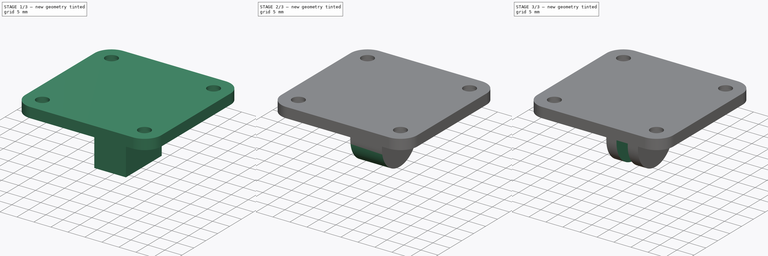
[diagram: build sequence overview — one tinted view per stage of 3, left to right]
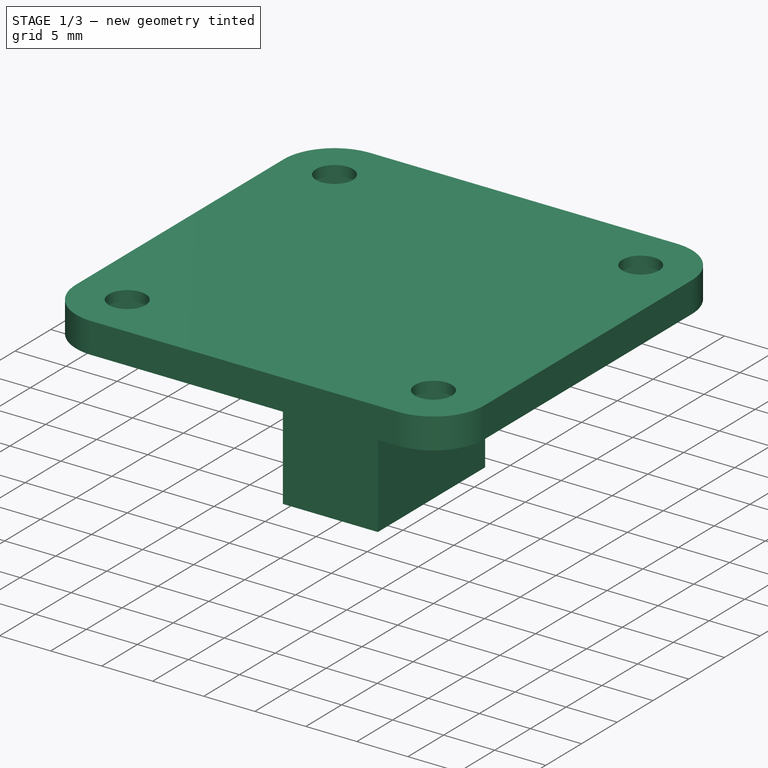
[diagram: stage 1 of 3 — iso view after this stage's code; geometry added in this stage tinted green]
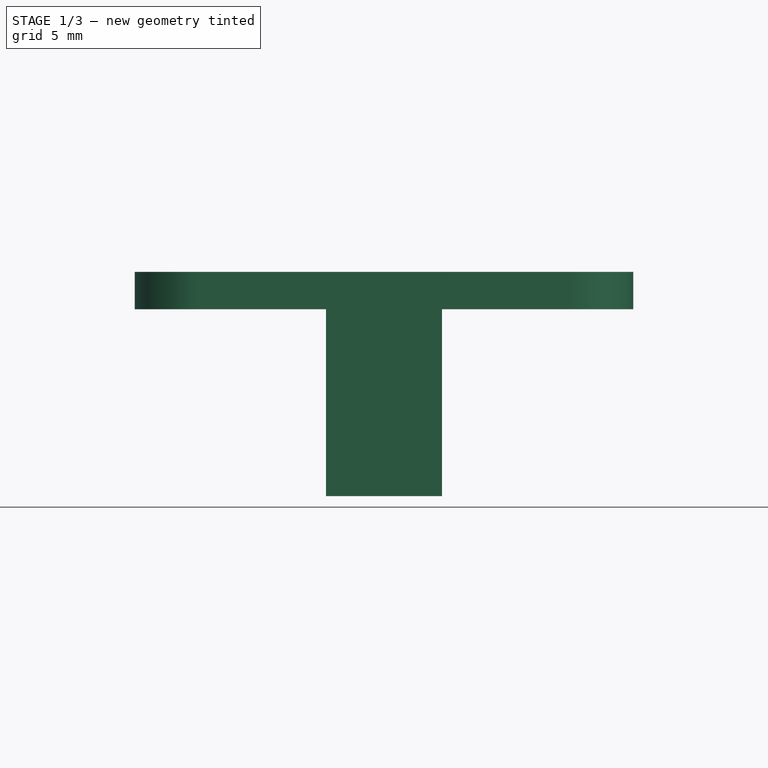
[diagram: stage 1 of 3 — front view after this stage's code; geometry added in this stage tinted green]
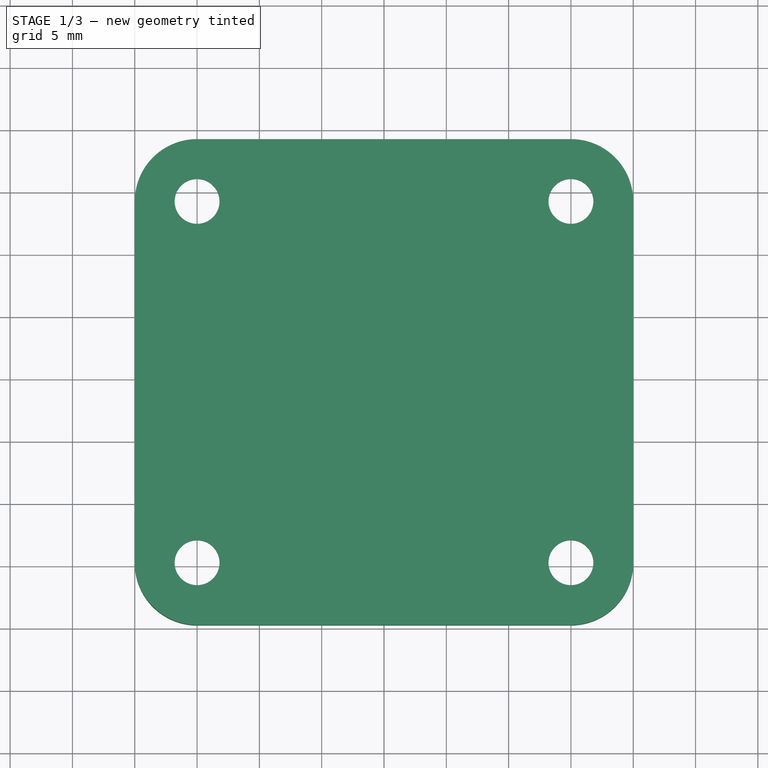
[diagram: stage 1 of 3 — top view after this stage's code; geometry added in this stage tinted green]
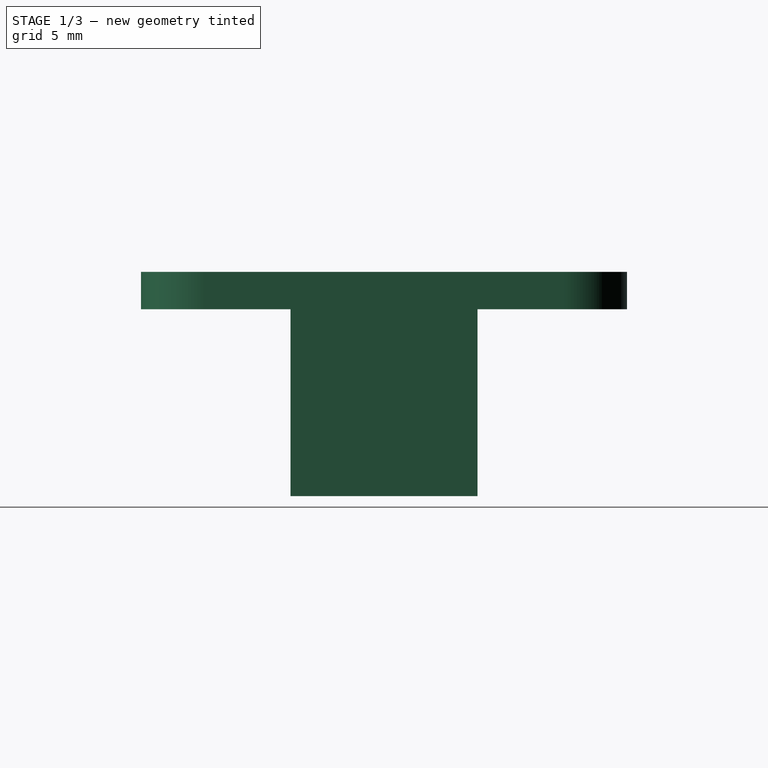
[diagram: stage 1 of 3 — right view after this stage's code; geometry added in this stage tinted green]
FCSTD DOCUMENT  (FreeCAD 0.14R3703 (Git))
Label: GoproMount
License: CC-BY 3.0
LicenseURL: http://creativecommons.org/licenses/by/3.0/
objects: Sketcher::SketchObject×5, PartDesign::Pocket×3, PartDesign::Fillet×3, PartDesign::Pad×2
note: 18 computed .brp shape members not serialized (recipe doc carries the construction recipe); baked Part::Feature solids carry a one-line shape summary decoded from their .brp

FEATURE [Sketcher::SketchObject] Sketch
  Placement = pos=(0,0,0) rot=(1,0,0;3.14159rad)
  sketch-geometry (16):
    g0: LineSegment [constr] StartX=0 StartY=-29 StartZ=0 EndX=30 EndY=-29 EndZ=0
    g1: LineSegment [constr] StartX=0 StartY=0 StartZ=0 EndX=30 EndY=0 EndZ=0
    g2: ArcOfCircle CenterX=0 CenterY=0 CenterZ=0 NormalX=0 NormalY=0 NormalZ=1 Radius=5 StartAngle=1.5708 EndAngle=3.14159
    g3: ArcOfCircle CenterX=30 CenterY=0 CenterZ=0 NormalX=0 NormalY=0 NormalZ=1 Radius=5 StartAngle=1.0302e-08 EndAngle=1.5708
    g4: ArcOfCircle CenterX=30 CenterY=-29 CenterZ=0 NormalX=0 NormalY=0 NormalZ=1 Radius=5 StartAngle=4.71239 EndAngle=6.28319
    g5: ArcOfCircle CenterX=0 CenterY=-29 CenterZ=0 NormalX=0 NormalY=0 NormalZ=1 Radius=5 StartAngle=3.14159 EndAngle=4.71239
    g6: LineSegment StartX=-5 StartY=-2.4449e-08 StartZ=0 EndX=-5 EndY=-29 EndZ=0
    g7: LineSegment StartX=35 StartY=5.1509e-08 StartZ=0 EndX=35 EndY=-29 EndZ=0
    g8: LineSegment StartX=1.473e-08 StartY=5 StartZ=0 EndX=30 EndY=5 EndZ=0
    g9: LineSegment StartX=-1.07098e-07 StartY=-34 StartZ=0 EndX=30 EndY=-34 EndZ=0
    g10: Circle CenterX=0 CenterY=0 CenterZ=0 NormalX=0 NormalY=0 NormalZ=1 Radius=1.8
    g11: Circle CenterX=30 CenterY=0 CenterZ=0 NormalX=0 NormalY=0 NormalZ=1 Radius=1.8
    g12: Circle CenterX=30 CenterY=-29 CenterZ=0 NormalX=0 NormalY=0 NormalZ=1 Radius=1.8
    g13: Circle CenterX=0 CenterY=-29 CenterZ=0 NormalX=0 NormalY=0 NormalZ=1 Radius=1.8
    g14: LineSegment [constr] StartX=30 StartY=0 StartZ=0 EndX=30 EndY=-29 EndZ=0
    g15: LineSegment [constr] StartX=0 StartY=0 StartZ=0 EndX=0 EndY=-29 EndZ=0
  constraints (43):
    c: Horizontal(g0)
    c: Horizontal(g1)
    c: Vertical(g6)
    c: Vertical(g7)
    c: Coincident(g2,g6)
    c: Coincident(g5,g6)
    c: Coincident(g4,g7)
    c: Coincident(g3,g7)
    c: Horizontal(g9)
    c: Horizontal(g8)
    c: Coincident(g2,g8)
    c: Coincident(g8,g3)
    c: Coincident(g9,g4)
    c: Coincident(g9,g5)
    c: Equal(g2,g3)
    c: Equal(g3,g4)
    c: Equal(g4,g5)
    c: Radius(g2) = 5
    c: Tangent(g7,g4)
    c: Tangent(g4,g9)
    c: Tangent(g5,g6)
    c: Tangent(g2,g8)
    c: Coincident(g0,g12)
    c: Coincident(g13,g0)
    c: Coincident(g2,g1)
    c: Coincident(g1,g3)
    c: Coincident(g1,g11)
    c: Coincident(g10,g1)
    c: Coincident(g5,g0)
    c: Coincident(g4,g0)
    c: Coincident(g14,g1)
    c: Coincident(g14,g0)
    c: Coincident(g15,g0)
    c: Coincident(g15,g1)
    c: Vertical(g15)
    c: Equal(g10,g11)
    c: Equal(g11,g12)
    c: Equal(g12,g13)
    c: DistanceX(g1) = 30
    c: DistanceY(g14) = -29
    c: Coincident(g1,g-1)
    c: Tangent(g3,g7)
    c: Radius(g10) = 1.8
FEATURE [PartDesign::Pad] Pad
  Length = 3
  Length2 = 100
  Placement = pos=(0,0,0) rot=(1,0,0;3.14159rad)
  Sketch = -> Sketch
  Type = 0
FEATURE [Sketcher::SketchObject] Sketch001
  Placement = pos=(0,0,-3) rot=(1,0,0;3.14159rad)
  Support = -> Pad [Face14]
  sketch-geometry (48):
    g0: LineSegment StartX=-3 StartY=-30.7321 StartZ=0 EndX=-3 EndY=-27.2679 EndZ=0
    g1: LineSegment StartX=-3 StartY=-27.2679 StartZ=0 EndX=0 EndY=-25.5359 EndZ=0
    g2: LineSegment StartX=0 StartY=-25.5359 StartZ=0 EndX=3 EndY=-27.2679 EndZ=0
    g3: LineSegment StartX=3 StartY=-27.2679 StartZ=0 EndX=3 EndY=-30.7321 EndZ=0
    g4: LineSegment StartX=3 StartY=-30.7321 StartZ=0 EndX=0 EndY=-32.4641 EndZ=0
    g5: LineSegment StartX=0 StartY=-32.4641 StartZ=0 EndX=-3 EndY=-30.7321 EndZ=0
    g6: LineSegment [constr] StartX=-3 StartY=-30.7321 StartZ=0 EndX=0 EndY=-29 EndZ=0
    g7: LineSegment [constr] StartX=0 StartY=-29 StartZ=0 EndX=3 EndY=-30.7321 EndZ=0
    g8: LineSegment [constr] StartX=0 StartY=-29 StartZ=0 EndX=0 EndY=-32.4641 EndZ=0
    g9: LineSegment [constr] StartX=-3 StartY=-27.2679 StartZ=0 EndX=0 EndY=-29 EndZ=0
    g10: LineSegment [constr] StartX=0 StartY=-29 StartZ=0 EndX=3 EndY=-27.2679 EndZ=0
    g11: LineSegment StartX=27 StartY=-30.7321 StartZ=0 EndX=27 EndY=-27.2679 EndZ=0
    g12: LineSegment StartX=27 StartY=-27.2679 StartZ=0 EndX=30 EndY=-25.5359 EndZ=0
    g13: LineSegment StartX=30 StartY=-25.5359 StartZ=0 EndX=33 EndY=-27.2679 EndZ=0
    g14: LineSegment StartX=33 StartY=-27.2679 StartZ=0 EndX=33 EndY=-30.7321 EndZ=0
    g15: LineSegment StartX=33 StartY=-30.7321 StartZ=0 EndX=30 EndY=-32.4641 EndZ=0
    g16: LineSegment StartX=30 StartY=-32.4641 StartZ=0 EndX=27 EndY=-30.7321 EndZ=0
    g17: LineSegment [constr] StartX=27 StartY=-30.7321 StartZ=0 EndX=30 EndY=-29 EndZ=0
    g18: LineSegment [constr] StartX=30 StartY=-29 StartZ=0 EndX=33 EndY=-27.2679 EndZ=0
    g19: LineSegment [constr] StartX=27 StartY=-27.2679 StartZ=0 EndX=30 EndY=-29 EndZ=0
    g20: LineSegment [constr] StartX=30 StartY=-29 StartZ=0 EndX=33 EndY=-30.7321 EndZ=0
    g21: LineSegment [constr] StartX=30 StartY=-29 StartZ=0 EndX=30 EndY=-32.4641 EndZ=0
    g22: LineSegment StartX=-3 StartY=1.73205 StartZ=0 EndX=-3 EndY=-1.73205 EndZ=0
    g23: LineSegment StartX=-3 StartY=-1.73205 StartZ=0 EndX=0 EndY=-3.4641 EndZ=0
    g24: LineSegment StartX=0 StartY=-3.4641 StartZ=0 EndX=3 EndY=-1.73205 EndZ=0
    g25: LineSegment StartX=3 StartY=-1.73205 StartZ=0 EndX=3 EndY=1.73205 EndZ=0
    g26: LineSegment StartX=3 StartY=1.73205 StartZ=0 EndX=0 EndY=3.4641 EndZ=0
    g27: LineSegment StartX=0 StartY=3.4641 StartZ=0 EndX=-3 EndY=1.73205 EndZ=0
    g28: LineSegment [constr] StartX=-3 StartY=1.73205 StartZ=0 EndX=0 EndY=0 EndZ=0
    g29: LineSegment [constr] StartX=0 StartY=0 StartZ=0 EndX=3 EndY=1.73205 EndZ=0
    g30: LineSegment [constr] StartX=0 StartY=0 StartZ=0 EndX=3 EndY=-1.73205 EndZ=0
    g31: LineSegment [constr] StartX=0 StartY=0 StartZ=0 EndX=0 EndY=-3.4641 EndZ=0
    g32: LineSegment [constr] StartX=0 StartY=0 StartZ=0 EndX=-3 EndY=-1.73205 EndZ=0
    g33: LineSegment StartX=27 StartY=-1.73205 StartZ=0 EndX=27 EndY=1.73205 EndZ=0
    g34: LineSegment StartX=27 StartY=1.73205 StartZ=0 EndX=30 EndY=3.4641 EndZ=0
    g35: LineSegment StartX=30 StartY=3.4641 StartZ=0 EndX=33 EndY=1.73205 EndZ=0
    g36: LineSegment StartX=33 StartY=1.73205 StartZ=0 EndX=33 EndY=-1.73205 EndZ=0
    g37: LineSegment StartX=33 StartY=-1.73205 StartZ=0 EndX=30 EndY=-3.4641 EndZ=0
    g38: LineSegment StartX=30 StartY=-3.4641 StartZ=0 EndX=27 EndY=-1.73205 EndZ=0
    g39: LineSegment [constr] StartX=27 StartY=1.73205 StartZ=0 EndX=30 EndY=0 EndZ=0
    g40: LineSegment [constr] StartX=30 StartY=0 StartZ=0 EndX=33 EndY=-1.73205 EndZ=0
    g41: LineSegment [constr] StartX=33 StartY=1.73205 StartZ=0 EndX=30 EndY=0 EndZ=0
    g42: LineSegment [constr] StartX=30 StartY=0 StartZ=0 EndX=27 EndY=-1.73205 EndZ=0
    g43: LineSegment [constr] StartX=30 StartY=0 StartZ=0 EndX=30 EndY=-3.4641 EndZ=0
    g44: LineSegment [constr] StartX=0 StartY=-29 StartZ=0 EndX=30 EndY=-29 EndZ=0
    g45: LineSegment [constr] StartX=0 StartY=0 StartZ=0 EndX=30 EndY=0 EndZ=0
    g46: LineSegment [constr] StartX=0 StartY=0 StartZ=0 EndX=0 EndY=-29 EndZ=0
    g47: LineSegment [constr] StartX=30 StartY=-29 StartZ=0 EndX=30 EndY=0 EndZ=0
  constraints (127):
    c: Vertical(g0)
    c: Coincident(g0,g1)
    c: Coincident(g1,g2)
    c: Coincident(g2,g3)
    c: Vertical(g3)
    c: Coincident(g3,g4)
    c: Coincident(g4,g5)
    c: Coincident(g5,g0)
    c: Coincident(g6,g0)
    c: Coincident(g7,g6)
    c: Coincident(g7,g3)
    c: Coincident(g8,g6)
    c: Coincident(g8,g4)
    c: Vertical(g8)
    c: Coincident(g9,g0)
    c: Coincident(g9,g6)
    c: Coincident(g10,g6)
    c: Coincident(g10,g2)
    c: Equal(g9,g6)
    c: Equal(g6,g8)
    c: Equal(g8,g7)
    c: Equal(g7,g10)
    c: Equal(g2,g1)
    c: Equal(g1,g0)
    c: Equal(g0,g5)
    c: Equal(g5,g4)
    c: Equal(g4,g3)
    c: DistanceX(g0,g2) = 6
    c: Vertical(g11)
    c: Coincident(g11,g12)
    c: Coincident(g12,g13)
    c: Coincident(g13,g14)
    c: Vertical(g14)
    c: Coincident(g14,g15)
    c: Coincident(g15,g16)
    c: Coincident(g16,g11)
    c: Coincident(g17,g11)
    c: Coincident(g18,g17)
    c: Coincident(g18,g13)
    c: Coincident(g19,g11)
    c: Coincident(g19,g17)
    c: Coincident(g20,g17)
    c: Coincident(g20,g14)
    c: Coincident(g21,g17)
    c: Coincident(g21,g15)
    c: Vertical(g21)
    c: Equal(g19,g17)
    c: Equal(g17,g21)
    c: Equal(g21,g20)
    c: Equal(g20,g18)
    c: Equal(g12,g13)
    c: Equal(g13,g11)
    c: Equal(g11,g14)
    c: Equal(g14,g15)
    c: Equal(g15,g16)
    c: DistanceX(g11,g13) = 6
    c: Vertical(g22)
    c: Coincident(g22,g23)
    c: Coincident(g23,g24)
    c: Coincident(g24,g25)
    c: Vertical(g25)
    c: Coincident(g25,g26)
    c: Coincident(g26,g27)
    c: Coincident(g27,g22)
    c: Coincident(g28,g22)
    c: Coincident(g29,g28)
    c: Coincident(g29,g25)
    c: Coincident(g30,g28)
    c: Coincident(g30,g24)
    c: Coincident(g31,g28)
    c: Coincident(g31,g23)
    c: Vertical(g31)
    c: Coincident(g32,g28)
    c: Coincident(g32,g22)
    c: Equal(g28,g32)
    c: Equal(g32,g31)
    c: Equal(g31,g30)
    c: Equal(g30,g29)
    c: Equal(g27,g26)
    c: Equal(g26,g25)
    c: Equal(g25,g22)
    c: Equal(g22,g23)
    c: Equal(g23,g24)
    c: DistanceX(g25,g22) = -6
    c: Coincident(g33,g34)
    c: Coincident(g34,g35)
    c: Coincident(g35,g36)
    c: Vertical(g36)
    c: Coincident(g36,g37)
    c: Coincident(g37,g38)
    c: Coincident(g38,g33)
    c: Vertical(g33)
    c: Coincident(g39,g33)
    c: Coincident(g40,g39)
    c: Coincident(g40,g36)
    c: Coincident(g41,g35)
    c: Coincident(g41,g39)
    c: Coincident(g42,g39)
    c: Coincident(g42,g33)
    c: Coincident(g43,g39)
    c: Coincident(g43,g37)
    c: Vertical(g43)
    c: Equal(g39,g42)
    c: Equal(g42,g43)
    c: Equal(g43,g40)
    c: Equal(g40,g41)
    c: Equal(g38,g33)
    c: Equal(g33,g34)
    c: Equal(g34,g35)
    c: Equal(g35,g36)
    c: Equal(g36,g37)
    c: DistanceX(g33,g35) = 6
    c: Coincident(g44,g6)
    c: Coincident(g44,g17)
    c: Horizontal(g44)
    c: Coincident(g45,g28)
    c: Coincident(g45,g39)
    c: Horizontal(g45)
    c: DistanceX(g45) = 30
    c: Vertical(g46)
    c: Coincident(g28,g46)
    c: Coincident(g46,g6)
    c: Vertical(g47)
    c: Coincident(g17,g47)
    c: Coincident(g39,g47)
    c: Coincident(g28,g-1)
    c: DistanceY(g47) = 29
FEATURE [PartDesign::Pocket] Pocket
  Length = 2
  Placement = pos=(0,0,0) rot=(1,0,0;3.14159rad)
  Sketch = -> Sketch001
  Type = 0
FEATURE [Sketcher::SketchObject] Sketch002
  Placement = pos=(0,0,-3) rot=(1,0,0;3.14159rad)
  Support = -> Pocket [Face5]
  sketch-geometry (8):
    g0: LineSegment StartX=10.35 StartY=-7 StartZ=0 EndX=19.65 EndY=-7 EndZ=0
    g1: LineSegment StartX=19.65 StartY=-7 StartZ=0 EndX=19.65 EndY=-22 EndZ=0
    g2: LineSegment StartX=19.65 StartY=-22 StartZ=0 EndX=10.35 EndY=-22 EndZ=0
    g3: LineSegment StartX=10.35 StartY=-22 StartZ=0 EndX=10.35 EndY=-7 EndZ=0
    g4: LineSegment [constr] StartX=10.35 StartY=-22 StartZ=0 EndX=15 EndY=-14.5 EndZ=0
    g5: LineSegment [constr] StartX=15 StartY=-14.5 StartZ=0 EndX=19.65 EndY=-7 EndZ=0
    g6: LineSegment [constr] StartX=19.65 StartY=-22 StartZ=0 EndX=15 EndY=-14.5 EndZ=0
    g7: LineSegment [constr] StartX=15 StartY=-14.5 StartZ=0 EndX=10.35 EndY=-7 EndZ=0
  constraints (22):
    c: Coincident(g0,g1)
    c: Coincident(g1,g2)
    c: Coincident(g2,g3)
    c: Coincident(g3,g0)
    c: Horizontal(g0)
    c: Horizontal(g2)
    c: Vertical(g1)
    c: Vertical(g3)
    c: DistanceY(g1) = -15
    c: DistanceX(g0) = 9.3
    c: Coincident(g2,g4)
    c: Coincident(g4,g5)
    c: Coincident(g5,g0)
    c: Coincident(g1,g6)
    c: Coincident(g6,g4)
    c: Coincident(g6,g7)
    c: Coincident(g7,g0)
    c: Equal(g5,g6)
    c: Equal(g6,g4)
    c: Equal(g4,g7)
    c: DistanceX(g4) = 15
    c: DistanceY(g4) = -14.5
FEATURE [PartDesign::Pad] Pad001
  Length = 15
  Length2 = 100
  Placement = pos=(0,0,0) rot=(1,0,0;3.14159rad)
  Sketch = -> Sketch002
  Type = 0
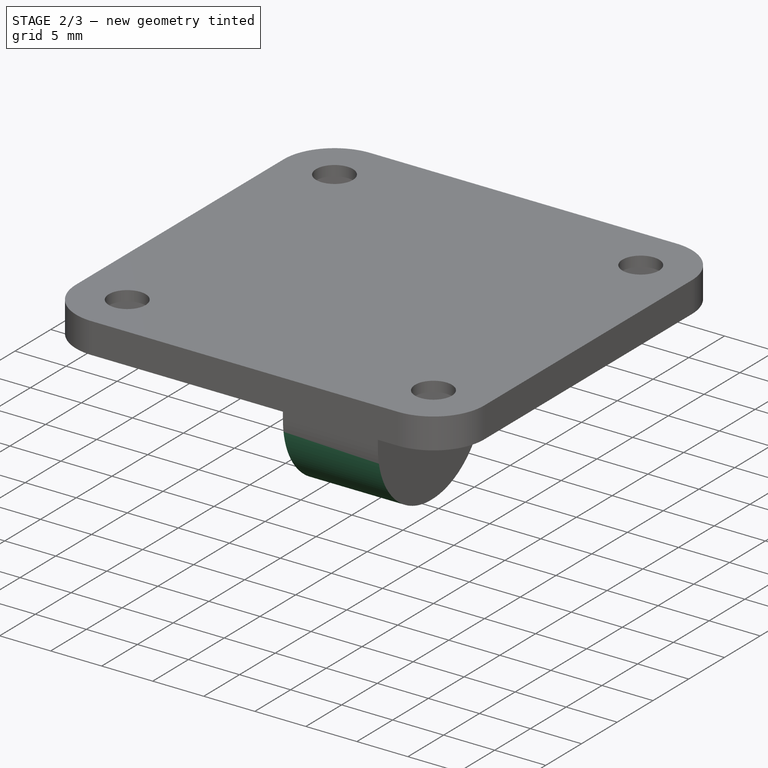
[diagram: stage 2 of 3 — iso view after this stage's code; geometry added in this stage tinted green]
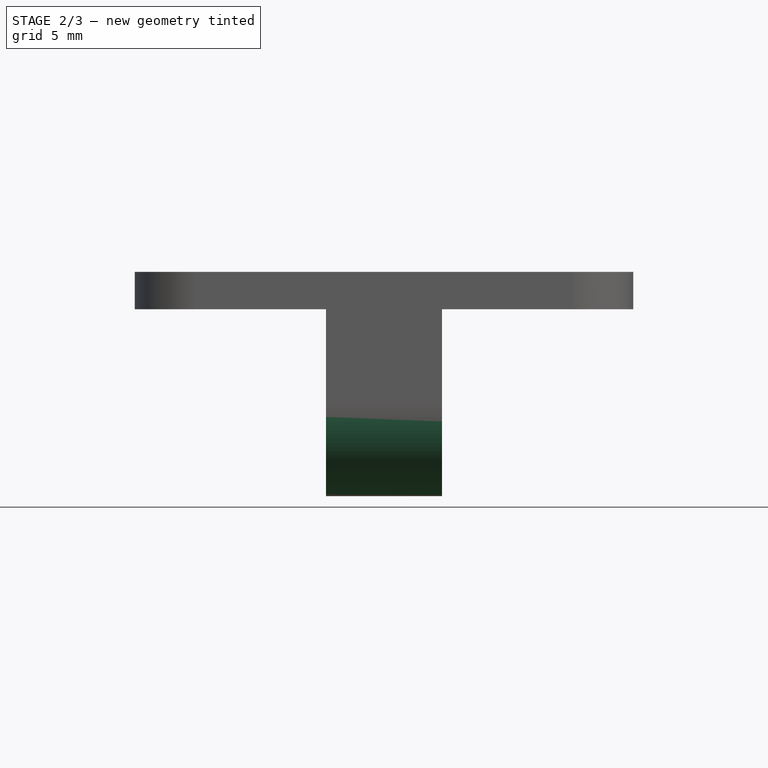
[diagram: stage 2 of 3 — front view after this stage's code; geometry added in this stage tinted green]
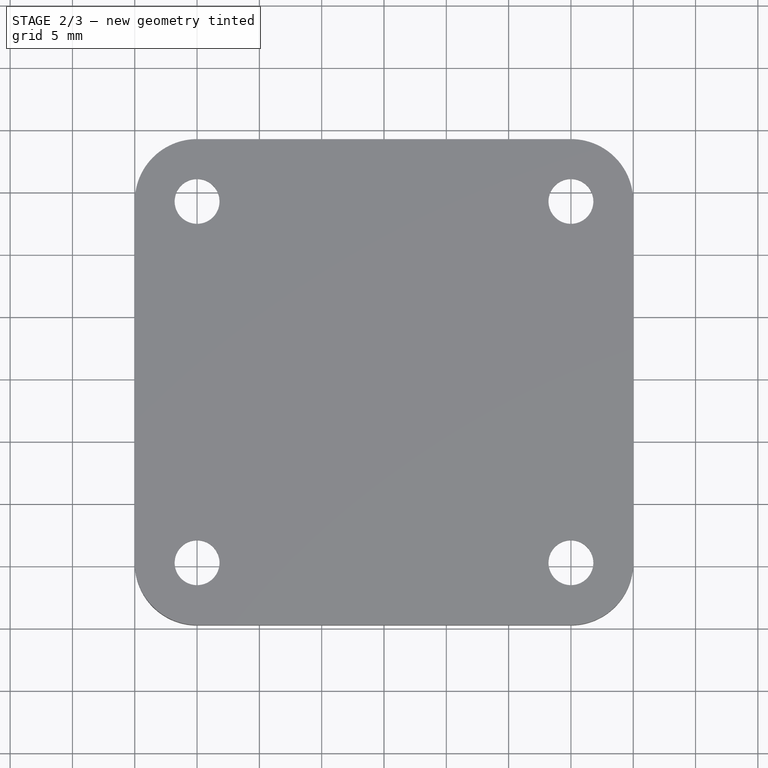
[diagram: stage 2 of 3 — top view after this stage's code; geometry added in this stage tinted green]
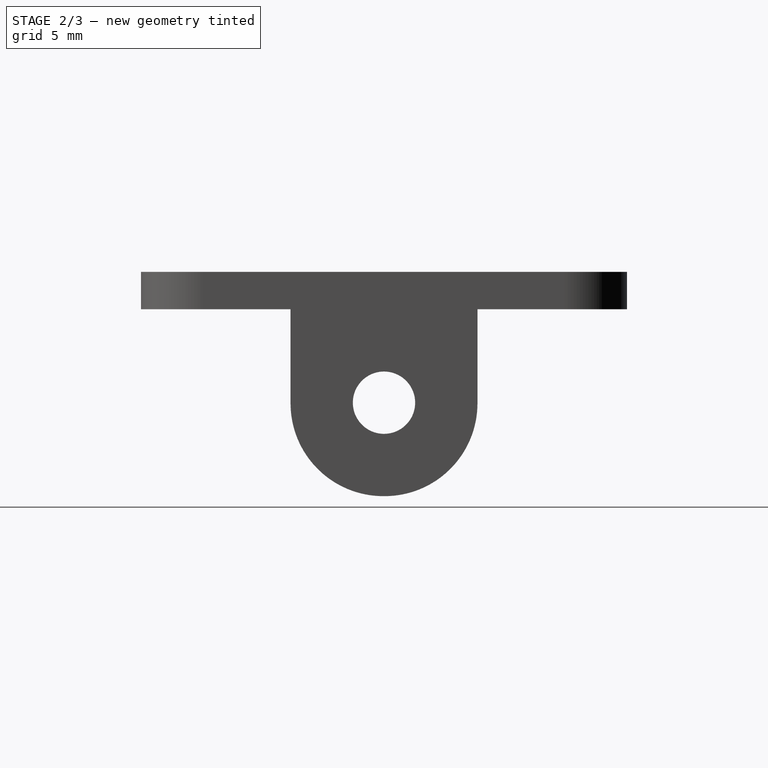
[diagram: stage 2 of 3 — right view after this stage's code; geometry added in this stage tinted green]
FEATURE [Sketcher::SketchObject] Sketch003
  Placement = pos=(19.65,0,0) rot=(0.57735,-0.57735,0.57735;4.18879rad)
  Support = -> Pad001 [Face42]
  sketch-geometry (1):
    g0: Circle CenterX=-14.5 CenterY=10.5 CenterZ=0 NormalX=0 NormalY=0 NormalZ=1 Radius=2.5
  constraints (3):
    c: Radius(g0) = 2.5
    c: DistanceX(g0) = -14.5
    c: DistanceY(g0) = 10.5
FEATURE [PartDesign::Pocket] Pocket001
  Length = 10
  Placement = pos=(0,0,0) rot=(1,0,0;3.14159rad)
  Sketch = -> Sketch003
  Type = 0
FEATURE [PartDesign::Fillet] Fillet
  Base = -> Pocket001 [Edge114,Edge119]
  Placement = pos=(0,0,0) rot=(1,0,0;3.14159rad)
  Radius = 7.45
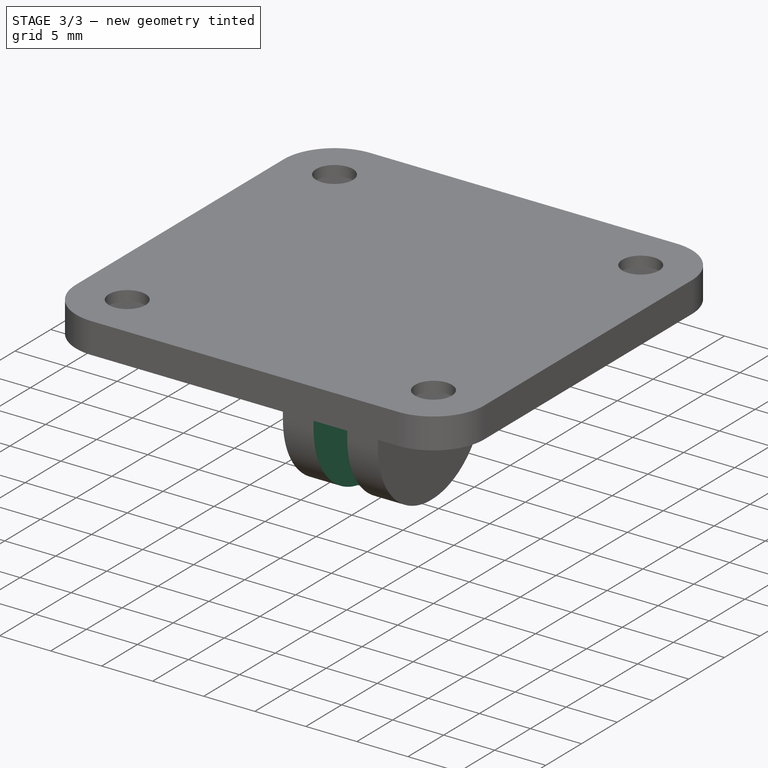
[diagram: stage 3 of 3 — iso view after this stage's code; geometry added in this stage tinted green]
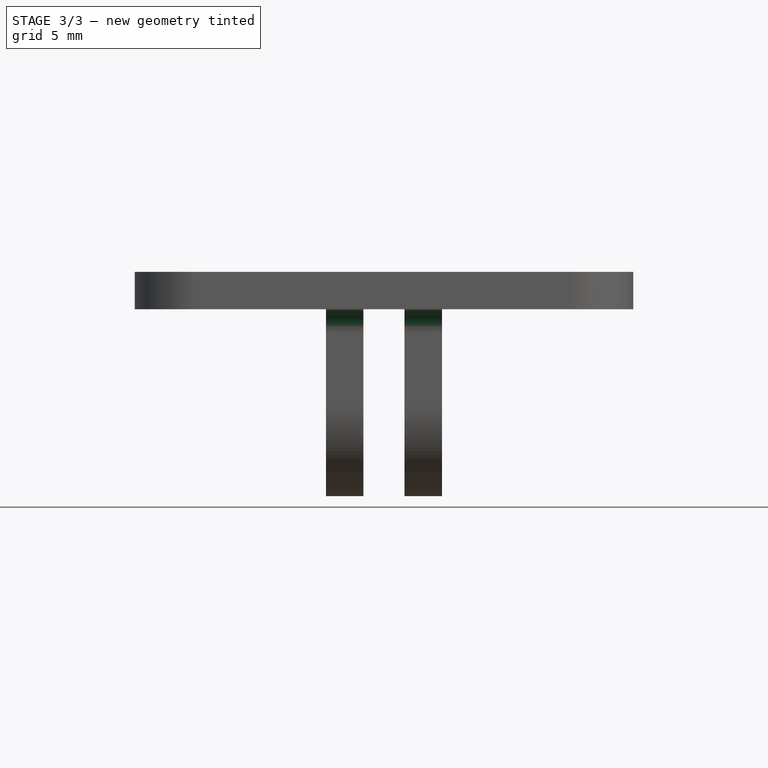
[diagram: stage 3 of 3 — front view after this stage's code; geometry added in this stage tinted green]
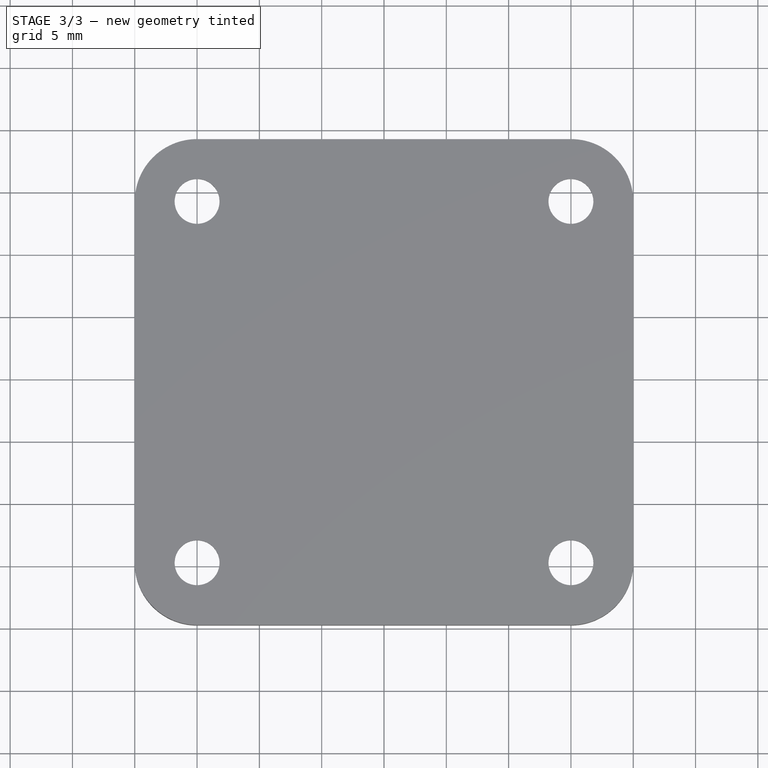
[diagram: stage 3 of 3 — top view after this stage's code; geometry added in this stage tinted green]
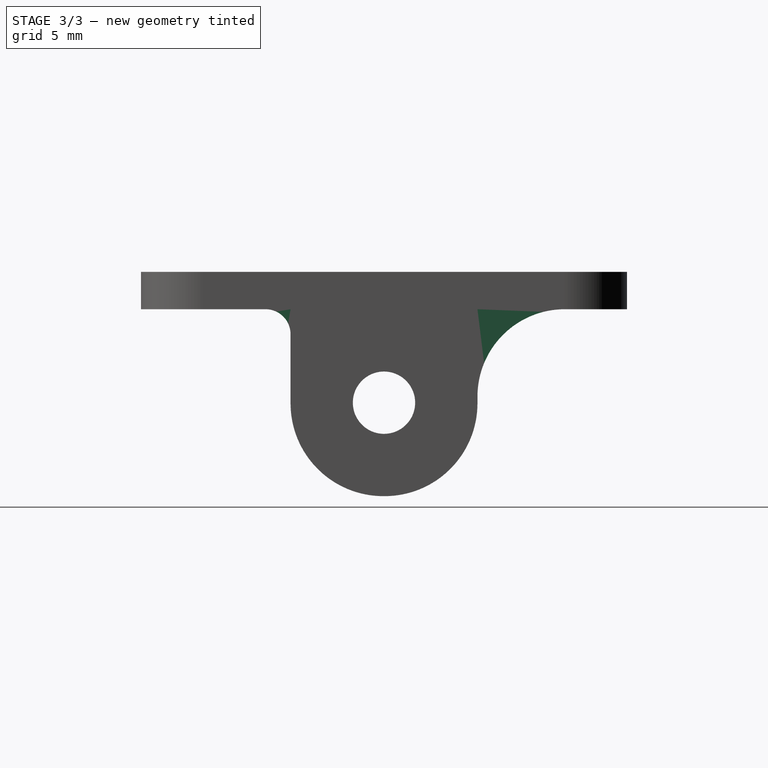
[diagram: stage 3 of 3 — right view after this stage's code; geometry added in this stage tinted green]
FEATURE [Sketcher::SketchObject] Sketch004
  Placement = pos=(0,22,0) rot=(-1,0,0;1.5708rad)
  Support = -> Fillet [Face1]
  sketch-geometry (5):
    g0: LineSegment StartX=13.35 StartY=18 StartZ=0 EndX=13.35 EndY=3 EndZ=0
    g1: LineSegment StartX=13.35 StartY=3 StartZ=0 EndX=16.65 EndY=3 EndZ=0
    g2: LineSegment StartX=16.65 StartY=3 StartZ=0 EndX=16.65 EndY=18 EndZ=0
    g3: LineSegment StartX=16.65 StartY=18 StartZ=0 EndX=15 EndY=18 EndZ=0
    g4: LineSegment StartX=15 StartY=18 StartZ=0 EndX=13.35 EndY=18 EndZ=0
  constraints (15):
    c: Vertical(g0)
    c: Coincident(g0,g1)
    c: Horizontal(g1)
    c: Coincident(g1,g2)
    c: Vertical(g2)
    c: Coincident(g2,g3)
    c: Horizontal(g3)
    c: Coincident(g3,g4)
    c: Coincident(g4,g0)
    c: Horizontal(g4)
    c: Equal(g3,g4)
    c: DistanceY(g0) = -15
    c: DistanceX(g1) = 3.3
    c: DistanceX(g3) = 15
    c: DistanceY(g3) = 18
FEATURE [PartDesign::Pocket] Pocket002
  Length = 15
  Placement = pos=(0,0,0) rot=(1,0,0;3.14159rad)
  Sketch = -> Sketch004
  Type = 0
FEATURE [PartDesign::Fillet] Fillet001
  Base = -> Pocket002 [Edge2,Edge45]
  Placement = pos=(0,0,0) rot=(1,0,0;3.14159rad)
  Radius = 7
FEATURE [PartDesign::Fillet] Fillet002
  Base = -> Fillet001 [Edge23,Edge26]
  Placement = pos=(0,0,0) rot=(1,0,0;3.14159rad)
  Radius = 2
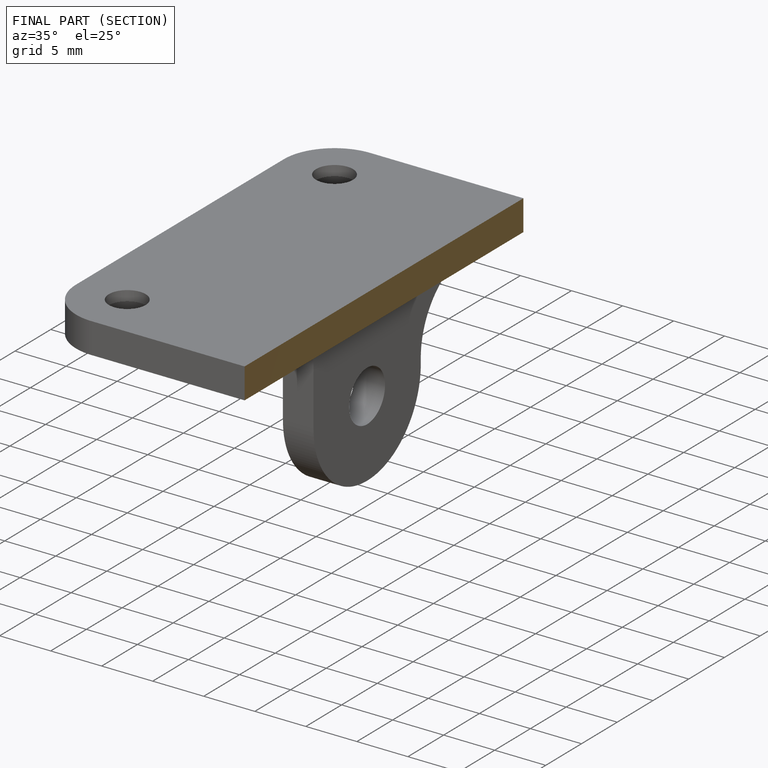
[diagram: finished part — half-section view (interior)]
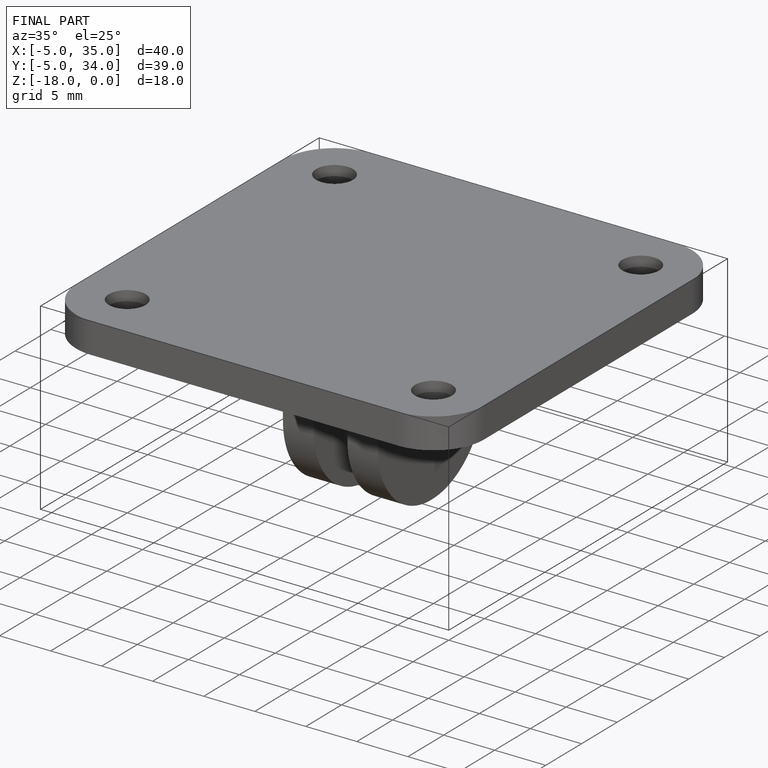
[diagram: finished part — iso view with bounding-box wireframe]
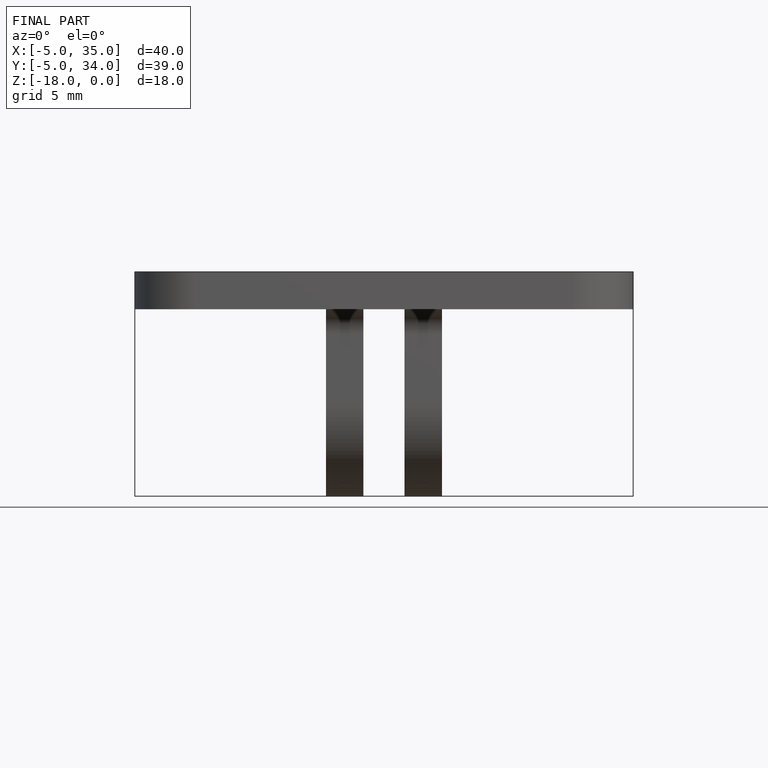
[diagram: finished part — front view with bounding-box wireframe]
